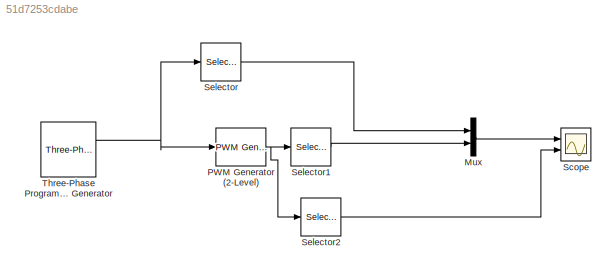
MODEL slx_51d7253cdabe
KIND model
CONFIG AbsTol = auto
CONFIG FixedStep = Ts
CONFIG MaxStep = auto
CONFIG MinStep = auto
CONFIG RelTol = 1e-3
CONFIG SampleTimeConstraint = Unconstrained
CONFIG Solver = ode3
CONFIG SolverMode = Auto
CONFIG SolverName = ode3
CONFIG StartTime = 0.0
CONFIG StopTime = 1
BLOCK [Mux] Mux
  DisplayOption = bar
  Inputs = 2
  Ports = [2, 1]
BLOCK [Reference] PWM Generator (2-Level)  REF=powerlib_meascontrol/Pulse & Signal
Generators/PWM Generator
(2-Level)
  Fc = 1000
  Freq = 60
  MinMax = [ -1  1 ]
  ModulatingSignals = off
  ModulatorMode = Unsynchronized
  ModulatorType = Three-phase bridge (6 pulses)
  Pc = 90
  Phase = 0
  Ports = [1, 1]
  SamplingTechnique = Natural
  ShowCarrierOutport = off
  SourceBlock = powerlib_meascontrol/Pulse & Signal\nGenerators/PWM Generator\n(2-Level)
  SourceType = PWM Generator (2-Level)
  Ts = Ts
  m = 0.8
  nF = 27
BLOCK [Scope] Scope
  Floating = off
  LimitDataPoints = off
  NumInputPorts = 2
  Ports = [2]
  YMax = 5~5
  YMin = -5~-5
  ZoomMode = xonly
BLOCK [Selector] Selector
  Indices = [1]
  InputPortWidth = 3
  Ports = [1, 1]
BLOCK [Selector] Selector1
  Indices = [1]
  InputPortWidth = 6
  Ports = [1, 1]
BLOCK [Selector] Selector2
  Indices = [2]
  InputPortWidth = 6
  Ports = [1, 1]
BLOCK [Reference] Three-Phase Programmable Generator  REF=powerlib_meascontrol/Pulse & Signal
Generators/Three-Phase
Programmable
Generator
  HarmonicGeneration = off
  Par_HarmoA = [3  5  -25 0]
  Par_HarmoB = [5  10  35  2]
  Par_Timing_Harmo = [ 0.05  99]
  Par_Timing_Variation = [0.2  1.2]
  Par_Vps = [1, 0, 50]
  Ports = [0, 2]
  SinglePhase = on
  SourceBlock = powerlib_meascontrol/Pulse & Signal\nGenerators/Three-Phase\nProgrammable\nGenerator
  SourceType = Three-Phase Programmable Generator
  Ts = Ts
  VariationEntity = None
  VariationFreq = 2
  VariationMag = 0.3
  VariationRate = 10
  VariationStep = -0.5
  VariationType = Ramp
  Xtime = [0 0.1 0.15 0.2]
  Yampli = [1 0.2 1.2 1.0]
LINE Mux:1 -> Scope:1
NET PWM Generator (2-Level):1 -> Selector1:1, Selector2:1
LINE Selector1:1 -> Mux:2
LINE Selector2:1 -> Scope:2
LINE Selector:1 -> Mux:1
NET Three-Phase Programmable Generator:1 -> PWM Generator (2-Level):1, Selector:1
note: NET lines group one-source signal fan-out (src -> all destinations, sorted); 1:1 wires keep LINE
